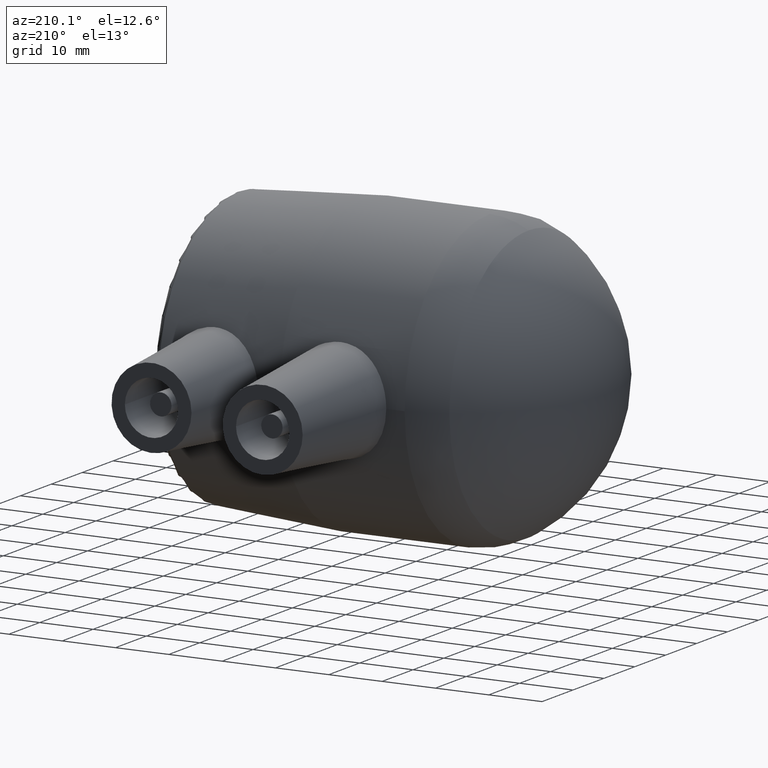
[diagram: clean part render]
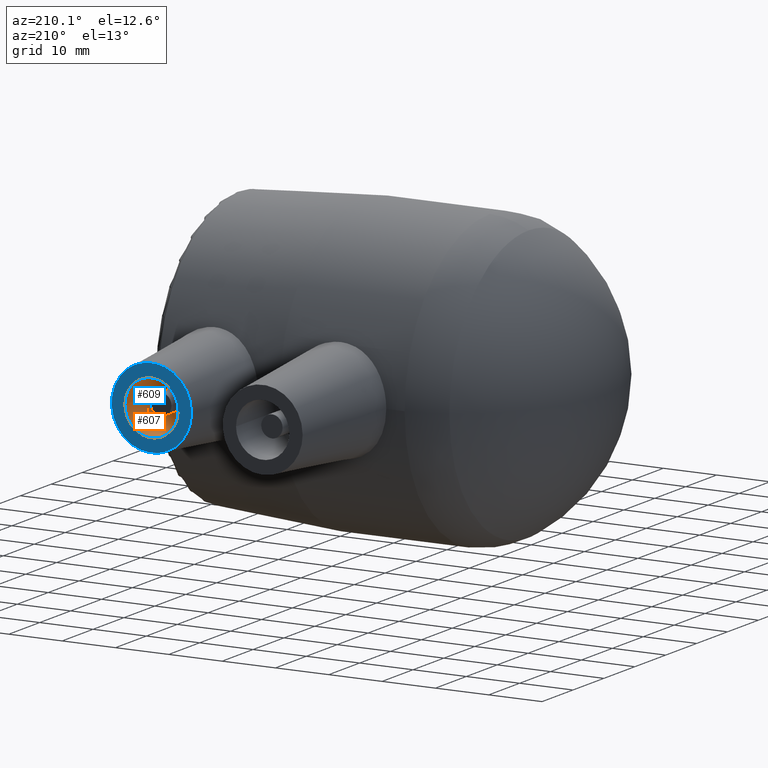
[diagram: same view with the hole feature highlighted: cylindrical wall and planar end face, labeled with their STEP entity ids]
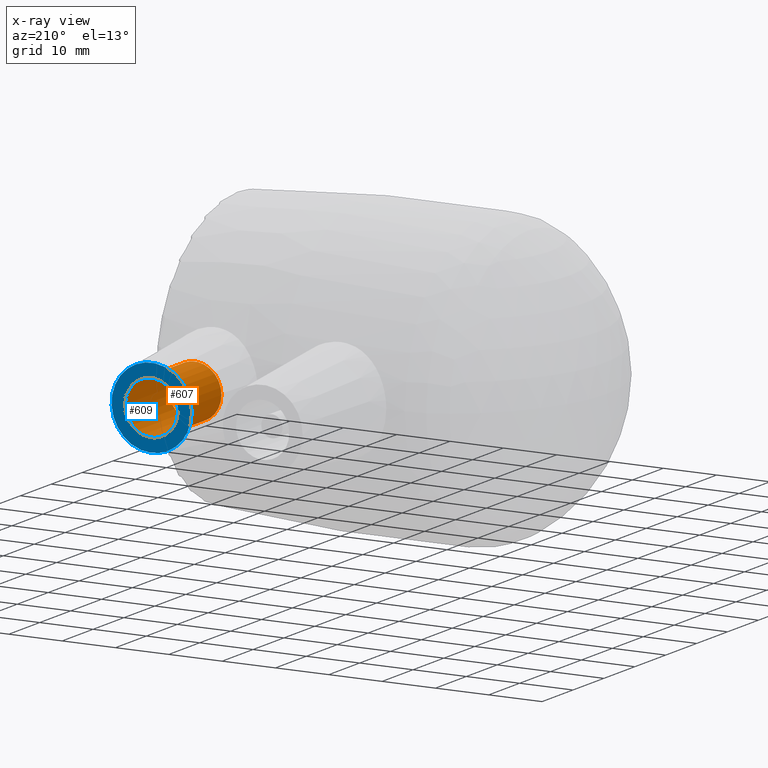
[diagram: x-ray of the same camera — body ghosted, the hole faces saturated]
A machine part, auxiliary view. The highlighted faces form one hole feature of diameter 10 mm: the cylindrical wall (entity #607, orange) and its adjacent planar end face (entity #609, blue) — they share a circular edge in the B-rep.
The next image is the same camera in x-ray (body ghosted, the hole faces saturated) — the bore reads through the body.
Wall:
#22=FACE_BOUND('',#180,.T.);
#44=CYLINDRICAL_SURFACE('',#681,5.);
#133=FACE_OUTER_BOUND('',#179,.T.);
#179=EDGE_LOOP('',(#503));
#180=EDGE_LOOP('',(#504));
#248=CIRCLE('',#682,5.);
#249=CIRCLE('',#683,5.);
#303=VERTEX_POINT('',#1097);
#304=VERTEX_POINT('',#1099);
#380=EDGE_CURVE('',#303,#303,#248,.T.);
#381=EDGE_CURVE('',#304,#304,#249,.T.);
#503=ORIENTED_EDGE('',*,*,#380,.T.);
#504=ORIENTED_EDGE('',*,*,#381,.F.);
#607=ADVANCED_FACE('',(#133,#22),#44,.F.);
#681=AXIS2_PLACEMENT_3D('',#1096,#845,#846);
#682=AXIS2_PLACEMENT_3D('',#1098,#847,#848);
#683=AXIS2_PLACEMENT_3D('',#1100,#849,#850);
#845=DIRECTION('center_axis',(0.,-1.,0.));
#846=DIRECTION('ref_axis',(-1.,0.,0.));
#847=DIRECTION('center_axis',(0.,-1.,0.));
#848=DIRECTION('ref_axis',(-1.,0.,0.));
#849=DIRECTION('center_axis',(0.,-1.,0.));
#850=DIRECTION('ref_axis',(-1.,0.,0.));
#1096=CARTESIAN_POINT('Origin',(-11.2,45.9,0.));
#1097=CARTESIAN_POINT('',(-6.2,31.9,-6.12323399573677E-16));
#1098=CARTESIAN_POINT('Origin',(-11.2,31.9,0.));
#1099=CARTESIAN_POINT('',(-6.2,45.9,-6.12323399573677E-16));
#1100=CARTESIAN_POINT('Origin',(-11.2,45.9,0.));
End face:
#24=FACE_BOUND('',#184,.T.);
#135=FACE_OUTER_BOUND('',#183,.T.);
#183=EDGE_LOOP('',(#507));
#184=EDGE_LOOP('',(#508));
#249=CIRCLE('',#683,5.);
#250=CIRCLE('',#686,7.5);
#304=VERTEX_POINT('',#1099);
#305=VERTEX_POINT('',#1103);
#381=EDGE_CURVE('',#304,#304,#249,.T.);
#382=EDGE_CURVE('',#305,#305,#250,.T.);
#507=ORIENTED_EDGE('',*,*,#382,.F.);
#508=ORIENTED_EDGE('',*,*,#381,.T.);
#578=PLANE('',#685);
#609=ADVANCED_FACE('',(#135,#24),#578,.T.);
#683=AXIS2_PLACEMENT_3D('',#1100,#849,#850);
#685=AXIS2_PLACEMENT_3D('',#1102,#853,#854);
#686=AXIS2_PLACEMENT_3D('',#1104,#855,#856);
#849=DIRECTION('center_axis',(0.,-1.,0.));
#850=DIRECTION('ref_axis',(-1.,0.,0.));
#853=DIRECTION('center_axis',(0.,1.,0.));
#854=DIRECTION('ref_axis',(0.,0.,1.));
#855=DIRECTION('center_axis',(0.,-1.,0.));
#856=DIRECTION('ref_axis',(1.,0.,0.));
#1099=CARTESIAN_POINT('',(-6.2,45.9,-6.12323399573677E-16));
#1100=CARTESIAN_POINT('Origin',(-11.2,45.9,0.));
#1102=CARTESIAN_POINT('Origin',(-11.2,45.9,1.2335811384724E-16));
#1103=CARTESIAN_POINT('',(-18.7,45.9,9.18485099360515E-16));
#1104=CARTESIAN_POINT('Origin',(-11.2,45.9,0.));